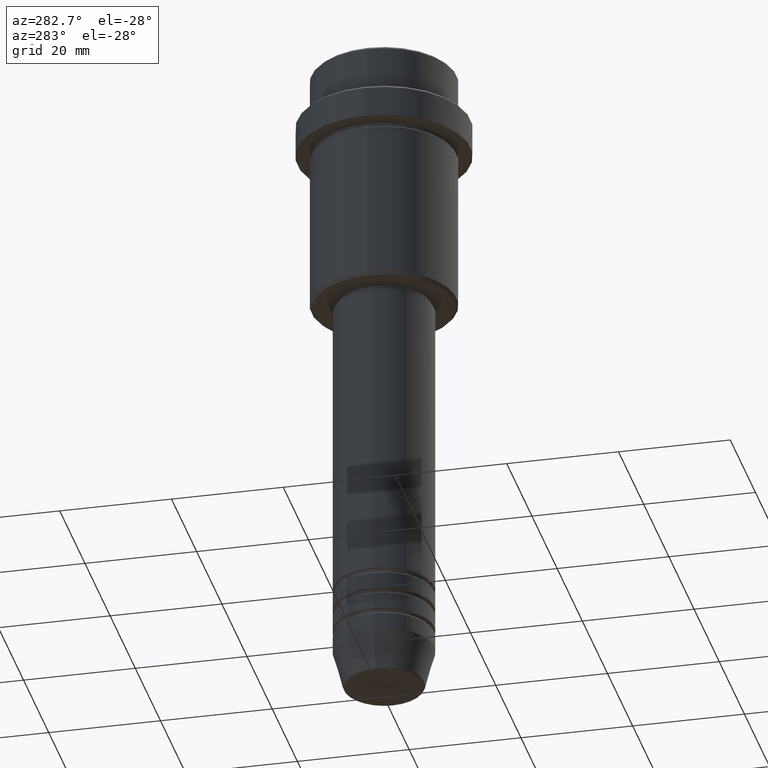
[diagram: clean part render]
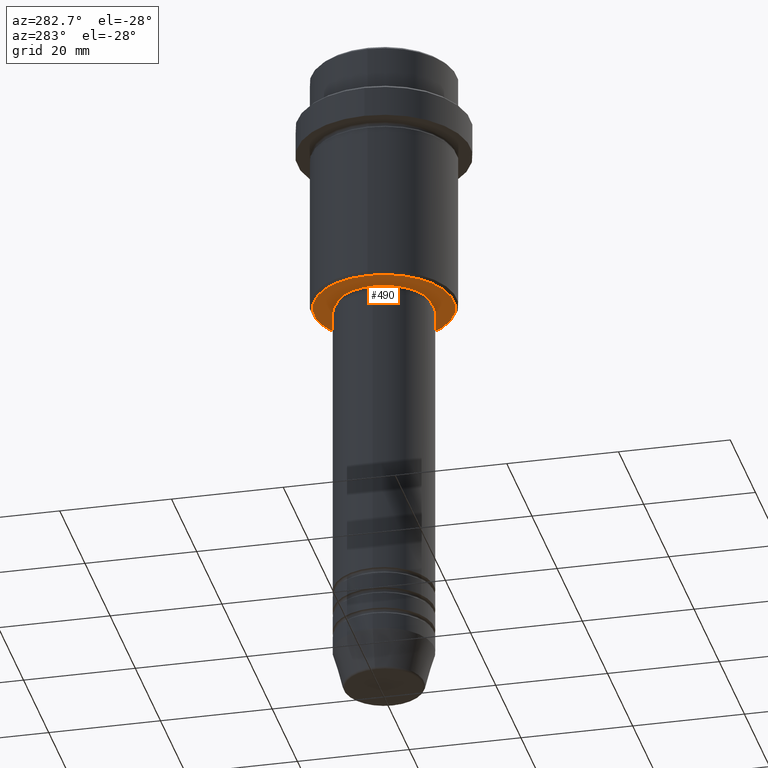
[diagram: same view with one face highlighted and labeled with its STEP entity id]
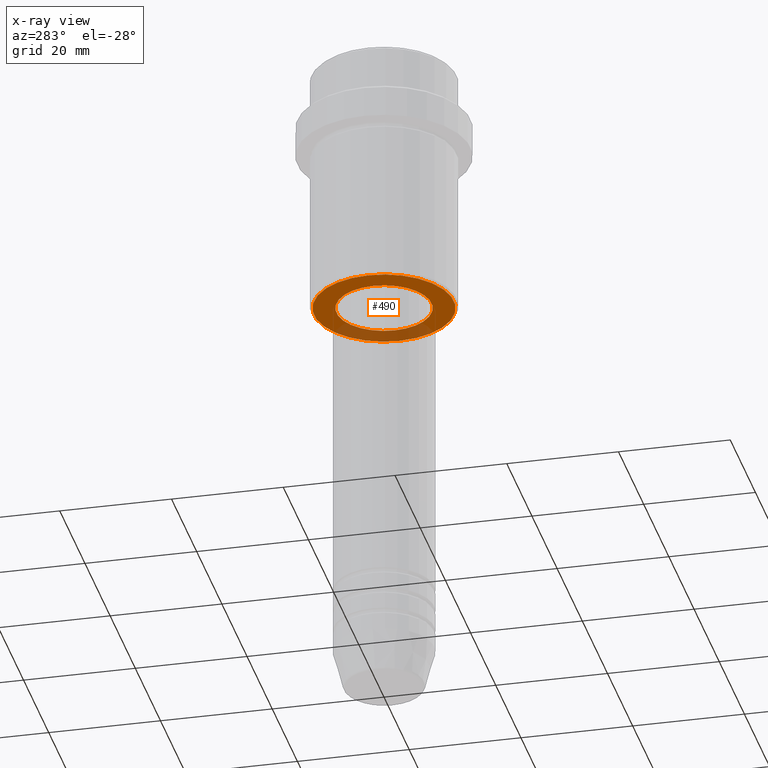
[diagram: x-ray of the same camera — body ghosted, the highlighted face saturated]
A machine part, auxiliary view. The second image highlights one B-rep face of the part: STEP entity #490.
The next image is the same camera in x-ray: the body ghosted, the highlighted face saturated — about 26% of this face is hidden behind the body in this view.
In plain terms, the highlighted planar face has unit normal (0, 0, -1).
Its self-contained STEP definition (entity closure, byte-faithful):
#66 = DIRECTION ( 'NONE',  ( -1.000000000000000000, 0.000000000000000000, 0.000000000000000000 ) ) ;
#95 = EDGE_CURVE ( 'NONE', #648, #355, #151, .T. ) ;
#109 = CARTESIAN_POINT ( 'NONE',  ( 12.49999999999999645, 0.000000000000000000, -45.00000000000000000 ) ) ;
#138 = DIRECTION ( 'NONE',  ( -0.000000000000000000, -0.000000000000000000, 1.000000000000000000 ) ) ;
#139 = EDGE_CURVE ( 'NONE', #724, #1204, #656, .T. ) ;
#151 = CIRCLE ( 'NONE', #910, 8.499999999999994671 ) ;
#177 = AXIS2_PLACEMENT_3D ( 'NONE', #1042, #722, #66 ) ;
#236 = CARTESIAN_POINT ( 'NONE',  ( 0.000000000000000000, 0.000000000000000000, -44.99999999999999289 ) ) ;
#249 = ORIENTED_EDGE ( 'NONE', *, *, #434, .T. ) ;
#298 = DIRECTION ( 'NONE',  ( -0.000000000000000000, -0.000000000000000000, 1.000000000000000000 ) ) ;
#301 = DIRECTION ( 'NONE',  ( -1.000000000000000000, 0.000000000000000000, -0.000000000000000000 ) ) ;
#332 = DIRECTION ( 'NONE',  ( 1.000000000000000000, 0.000000000000000000, 0.000000000000000000 ) ) ;
#333 = AXIS2_PLACEMENT_3D ( 'NONE', #836, #438, #1098 ) ;
#355 = VERTEX_POINT ( 'NONE', #476 ) ;
#401 = DIRECTION ( 'NONE',  ( 0.000000000000000000, 0.000000000000000000, -1.000000000000000000 ) ) ;
#434 = EDGE_CURVE ( 'NONE', #1204, #724, #1387, .T. ) ;
#438 = DIRECTION ( 'NONE',  ( 0.000000000000000000, 0.000000000000000000, -1.000000000000000000 ) ) ;
#476 = CARTESIAN_POINT ( 'NONE',  ( 8.499999999999994671, 0.000000000000000000, -44.99999999999999289 ) ) ;
#490 = ADVANCED_FACE ( 'NONE', ( #969, #1386 ), #1284, .T. ) ;
#493 = DIRECTION ( 'NONE',  ( 1.000000000000000000, 0.000000000000000000, 0.000000000000000000 ) ) ;
#504 = EDGE_LOOP ( 'NONE', ( #522, #1333 ) ) ;
#522 = ORIENTED_EDGE ( 'NONE', *, *, #677, .T. ) ;
#585 = AXIS2_PLACEMENT_3D ( 'NONE', #964, #401, #301 ) ;
#648 = VERTEX_POINT ( 'NONE', #1312 ) ;
#656 = CIRCLE ( 'NONE', #333, 12.49999999999999645 ) ;
#677 = EDGE_CURVE ( 'NONE', #355, #648, #1388, .T. ) ;
#721 = CARTESIAN_POINT ( 'NONE',  ( -12.49999999999999645, 1.561424668912875111E-15, -45.00000000000000000 ) ) ;
#722 = DIRECTION ( 'NONE',  ( 0.000000000000000000, 0.000000000000000000, -1.000000000000000000 ) ) ;
#724 = VERTEX_POINT ( 'NONE', #109 ) ;
#836 = CARTESIAN_POINT ( 'NONE',  ( 0.000000000000000000, 0.000000000000000000, -45.00000000000000000 ) ) ;
#840 = EDGE_LOOP ( 'NONE', ( #1285, #249 ) ) ;
#910 = AXIS2_PLACEMENT_3D ( 'NONE', #1259, #298, #493 ) ;
#964 = CARTESIAN_POINT ( 'NONE',  ( 0.000000000000000000, 13.00000000000000000, -45.00000000000000000 ) ) ;
#969 = FACE_OUTER_BOUND ( 'NONE', #840, .T. ) ;
#974 = AXIS2_PLACEMENT_3D ( 'NONE', #236, #138, #332 ) ;
#1042 = CARTESIAN_POINT ( 'NONE',  ( 0.000000000000000000, 0.000000000000000000, -45.00000000000000000 ) ) ;
#1098 = DIRECTION ( 'NONE',  ( -1.000000000000000000, 0.000000000000000000, 0.000000000000000000 ) ) ;
#1204 = VERTEX_POINT ( 'NONE', #721 ) ;
#1259 = CARTESIAN_POINT ( 'NONE',  ( 0.000000000000000000, 0.000000000000000000, -44.99999999999999289 ) ) ;
#1284 = PLANE ( 'NONE',  #585 ) ;
#1285 = ORIENTED_EDGE ( 'NONE', *, *, #139, .T. ) ;
#1312 = CARTESIAN_POINT ( 'NONE',  ( -8.499999999999994671, 1.040949779275249745E-15, -44.99999999999999289 ) ) ;
#1333 = ORIENTED_EDGE ( 'NONE', *, *, #95, .T. ) ;
#1386 = FACE_BOUND ( 'NONE', #504, .T. ) ;
#1387 = CIRCLE ( 'NONE', #177, 12.49999999999999645 ) ;
#1388 = CIRCLE ( 'NONE', #974, 8.499999999999994671 ) ;